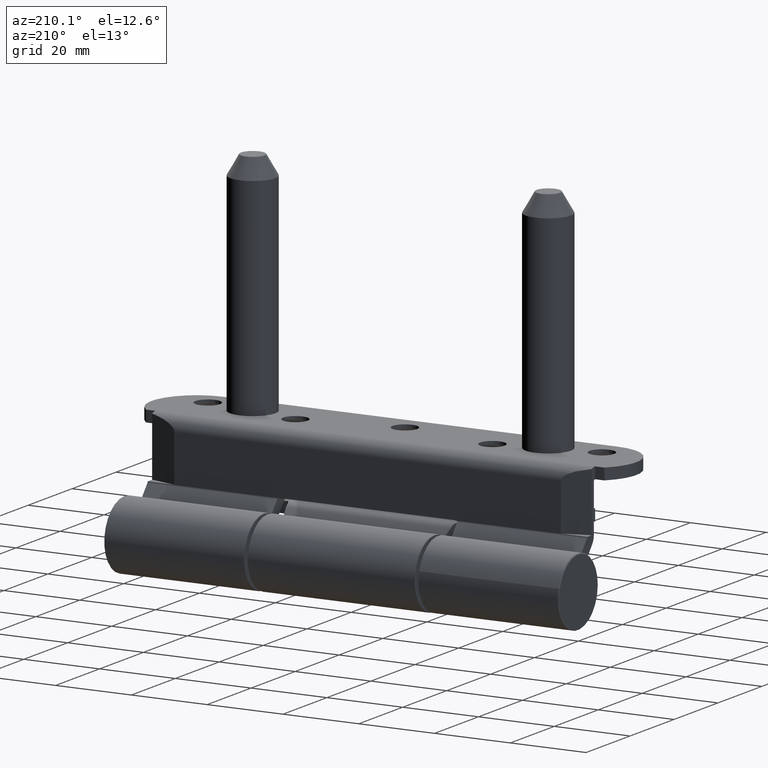
[diagram: clean part render]
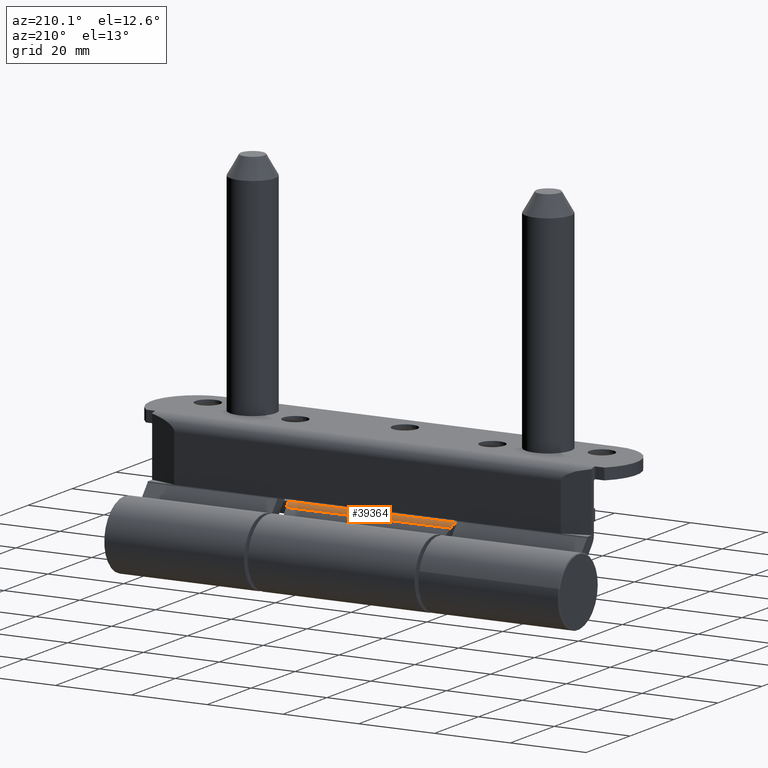
[diagram: same view with one face highlighted and labeled with its STEP entity id]
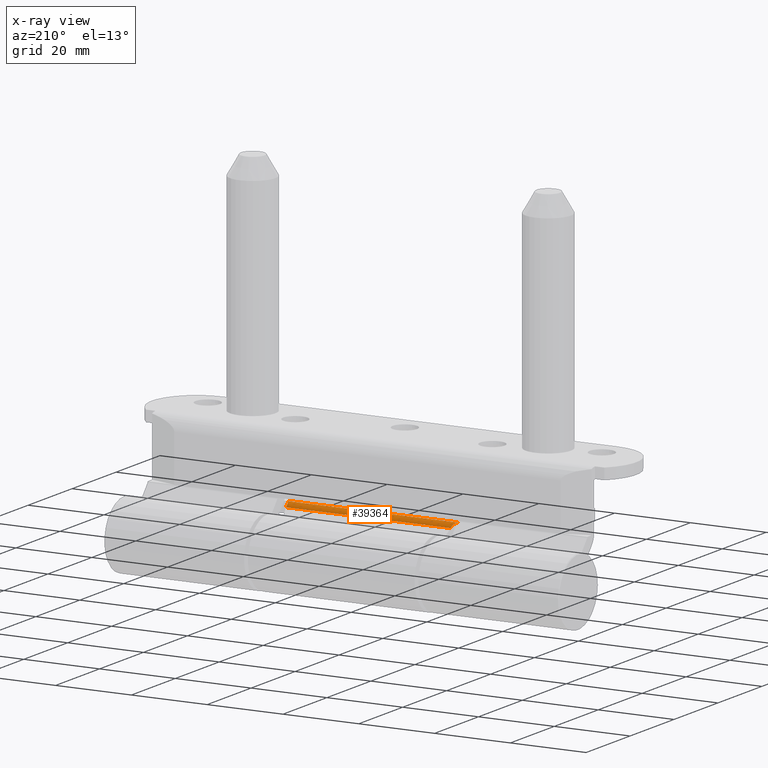
[diagram: x-ray of the same camera — body ghosted, the highlighted face saturated]
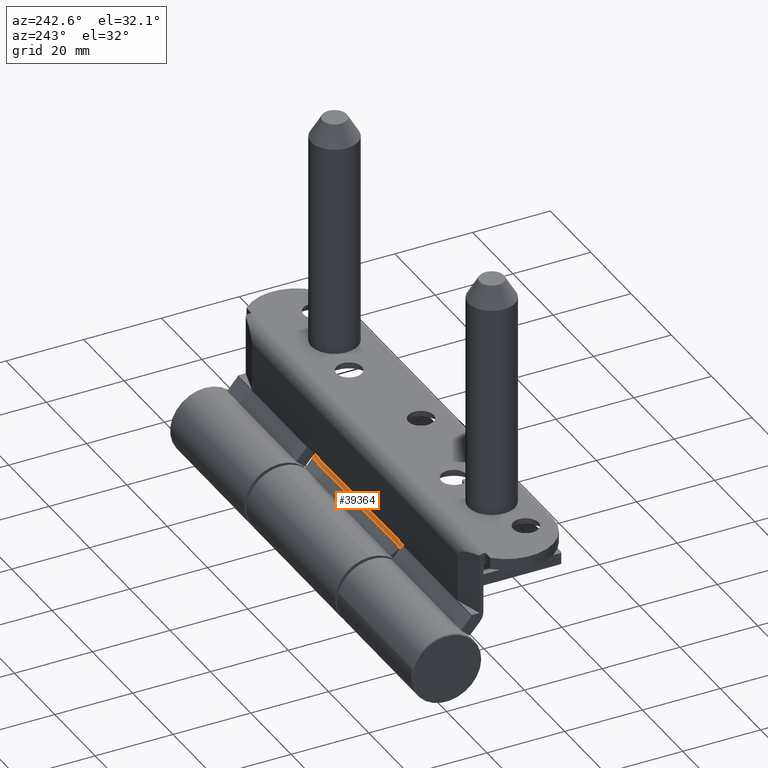
[diagram: same view with one face highlighted and labeled with its STEP entity id]
A machine part, auxiliary view. The second image highlights one B-rep face of the part: STEP entity #39364.
The next image is the same camera in x-ray: the body ghosted, the highlighted face saturated — about 0% of this face is hidden behind the body in this view.
A second angle (auxiliary view) of the same face is appended — the face is thin or edge-on in the first view.
In plain terms, the highlighted cylindrical surface (edge-blend (fillet) strip) has radius 3.5 mm, axis along (1, -0, -0).
Its self-contained STEP definition (entity closure, byte-faithful):
#2875 = AXIS2_PLACEMENT_3D ( 'NONE', #33337, #10023, #50262 ) ;
#3328 = CARTESIAN_POINT ( 'NONE',  ( -10.19218558541687791, -10.00000000000000178, -22.84363126795928878 ) ) ;
#4990 = ORIENTED_EDGE ( 'NONE', *, *, #35058, .F. ) ;
#5407 = ORIENTED_EDGE ( 'NONE', *, *, #8478, .F. ) ;
#6031 = FACE_OUTER_BOUND ( 'NONE', #35991, .T. ) ;
#7019 = CARTESIAN_POINT ( 'NONE',  ( -7.847930449377619411, -9.098935908627518998, -21.74921220509393294 ) ) ;
#7827 = CARTESIAN_POINT ( 'NONE',  ( -9.554985977015991949, -9.950044227437093269, -22.12405039932055217 ) ) ;
#8025 = CARTESIAN_POINT ( 'NONE',  ( -10.19218558541687791, -10.00000000000000178, -22.84363126795928878 ) ) ;
#8141 = VECTOR ( 'NONE', #26820, 1000.000000000000000 ) ;
#8143 = CARTESIAN_POINT ( 'NONE',  ( -7.847930449377619411, -9.098935908627518998, 21.74921220509394004 ) ) ;
#8478 = EDGE_CURVE ( 'NONE', #36830, #31400, #28872, .T. ) ;
#10023 = DIRECTION ( 'NONE',  ( -0.000000000000000000, -0.000000000000000000, -1.000000000000000000 ) ) ;
#10661 = VERTEX_POINT ( 'NONE', #46999 ) ;
#10751 = VECTOR ( 'NONE', #24648, 1000.000000000000000 ) ;
#12079 = CARTESIAN_POINT ( 'NONE',  ( -8.778481474881576929, -9.701787108452965214, 21.85791980574018112 ) ) ;
#13616 = VERTEX_POINT ( 'NONE', #33490 ) ;
#13921 = CARTESIAN_POINT ( 'NONE',  ( -8.438862664813878922, -9.551833194733886145, -21.82167417280692945 ) ) ;
#14961 = CARTESIAN_POINT ( 'NONE',  ( -8.123603843901573640, -9.347594895883361232, -21.78545783802717395 ) ) ;
#15256 = ORIENTED_EDGE ( 'NONE', *, *, #43739, .T. ) ;
#18016 = CARTESIAN_POINT ( 'NONE',  ( -9.430248226827966818, -9.924657643298788301, 22.01414392966985645 ) ) ;
#18540 = CARTESIAN_POINT ( 'NONE',  ( -9.909912388201076894, -9.997020210743972513, 22.34271604285236634 ) ) ;
#19214 = CARTESIAN_POINT ( 'NONE',  ( -9.203347051000831058, -9.889380533949314156, -21.98097800959660830 ) ) ;
#19856 = B_SPLINE_CURVE_WITH_KNOTS ( 'NONE', 3,
 ( #12079, #43614, #35928, #8143 ),
 .UNSPECIFIED., .F., .F.,
 ( 4, 4 ),
 ( 0.000000000000000000, 1.000000000000000000 ),
 .UNSPECIFIED. ) ;
#21660 = CARTESIAN_POINT ( 'NONE',  ( -8.778481474881576929, -9.701787108452965214, 21.85791980574018112 ) ) ;
#21927 = EDGE_CURVE ( 'NONE', #10661, #13616, #33725, .T. ) ;
#22057 = VERTEX_POINT ( 'NONE', #8025 ) ;
#24395 = LINE ( 'NONE', #28896, #10751 ) ;
#24648 = DIRECTION ( 'NONE',  ( -0.000000000000000000, -0.000000000000000000, -1.000000000000000000 ) ) ;
#25225 = B_SPLINE_CURVE_WITH_KNOTS ( 'NONE', 3,
 ( #39354, #19214, #7827, #43840, #35893, #3328 ),
 .UNSPECIFIED., .F., .F.,
 ( 4, 2, 4 ),
 ( 0.000000000000000000, 0.5000000000000000000, 1.000000000000000000 ),
 .UNSPECIFIED. ) ;
#25890 = CYLINDRICAL_SURFACE ( 'NONE', #2875, 3.499999999999997780 ) ;
#26820 = DIRECTION ( 'NONE',  ( -0.000000000000000000, 0.000000000000000000, -1.000000000000000000 ) ) ;
#27557 = CARTESIAN_POINT ( 'NONE',  ( -10.19218558541682818, -10.00000000000000000, 22.84363614528772146 ) ) ;
#28031 = VERTEX_POINT ( 'NONE', #34827 ) ;
#28197 = EDGE_CURVE ( 'NONE', #28031, #22057, #25225, .T. ) ;
#28872 = B_SPLINE_CURVE_WITH_KNOTS ( 'NONE', 3,
 ( #46122, #38693, #18540, #18016, #33674, #50856 ),
 .UNSPECIFIED., .F., .F.,
 ( 4, 2, 4 ),
 ( 0.000000000000000000, 0.5000000000000000000, 1.000000000000000000 ),
 .UNSPECIFIED. ) ;
#28896 = CARTESIAN_POINT ( 'NONE',  ( -10.19218558541687791, -10.00000000000000178, 42.00000000000000000 ) ) ;
#31400 = VERTEX_POINT ( 'NONE', #21660 ) ;
#31511 = B_SPLINE_CURVE_WITH_KNOTS ( 'NONE', 3,
 ( #7019, #14961, #13921, #35081 ),
 .UNSPECIFIED., .F., .F.,
 ( 4, 4 ),
 ( 0.000000000000000000, 0.9999973170992566551 ),
 .UNSPECIFIED. ) ;
#31653 = EDGE_CURVE ( 'NONE', #31400, #10661, #19856, .T. ) ;
#33337 = CARTESIAN_POINT ( 'NONE',  ( -10.19218558541687791, -6.500000000000002665, 45.80918484566569049 ) ) ;
#33490 = CARTESIAN_POINT ( 'NONE',  ( -7.847930449377619411, -9.098935908627518998, -21.74921220509393294 ) ) ;
#33508 = ORIENTED_EDGE ( 'NONE', *, *, #28197, .F. ) ;
#33674 = CARTESIAN_POINT ( 'NONE',  ( -9.125248118461172453, -9.854897047627487083, 21.90741176110850219 ) ) ;
#33725 = LINE ( 'NONE', #38481, #8141 ) ;
#34827 = CARTESIAN_POINT ( 'NONE',  ( -8.778478741391412044, -9.701785901517396837, -21.85791951400987898 ) ) ;
#35058 = EDGE_CURVE ( 'NONE', #13616, #28031, #31511, .T. ) ;
#35081 = CARTESIAN_POINT ( 'NONE',  ( -8.778478741391412044, -9.701785901517396837, -21.85791951400987898 ) ) ;
#35893 = CARTESIAN_POINT ( 'NONE',  ( -10.17002615511906249, -10.00000000000000000, -22.63775969378727382 ) ) ;
#35928 = CARTESIAN_POINT ( 'NONE',  ( -8.123603843901562982, -9.347594895883355903, 21.78545783802718105 ) ) ;
#35991 = EDGE_LOOP ( 'NONE', ( #4990, #38276, #36793, #5407, #15256, #33508 ) ) ;
#36793 = ORIENTED_EDGE ( 'NONE', *, *, #31653, .F. ) ;
#36830 = VERTEX_POINT ( 'NONE', #27557 ) ;
#38276 = ORIENTED_EDGE ( 'NONE', *, *, #21927, .F. ) ;
#38481 = CARTESIAN_POINT ( 'NONE',  ( -7.847930449377619411, -9.098935908627518998, 42.00000000000000000 ) ) ;
#38693 = CARTESIAN_POINT ( 'NONE',  ( -10.08539945421009421, -9.999999999999998224, 22.56456162716560243 ) ) ;
#39354 = CARTESIAN_POINT ( 'NONE',  ( -8.778478741391412044, -9.701785901517396837, -21.85791951400987898 ) ) ;
#39364 = ADVANCED_FACE ( 'NONE', ( #6031 ), #25890, .T. ) ;
#43614 = CARTESIAN_POINT ( 'NONE',  ( -8.438862664813880698, -9.551833194733887922, 21.82167417280692945 ) ) ;
#43739 = EDGE_CURVE ( 'NONE', #36830, #22057, #24395, .T. ) ;
#43840 = CARTESIAN_POINT ( 'NONE',  ( -10.03695950602918785, -10.00495839868266934, -22.45262251250307628 ) ) ;
#46122 = CARTESIAN_POINT ( 'NONE',  ( -10.19218558541682818, -10.00000000000000000, 22.84363614528772146 ) ) ;
#46999 = CARTESIAN_POINT ( 'NONE',  ( -7.847930449377619411, -9.098935908627518998, 21.74921220509394004 ) ) ;
#50262 = DIRECTION ( 'NONE',  ( -1.000000000000000000, 0.000000000000000000, 0.000000000000000000 ) ) ;
#50856 = CARTESIAN_POINT ( 'NONE',  ( -8.778481474881576929, -9.701787108452965214, 21.85791980574018112 ) ) ;